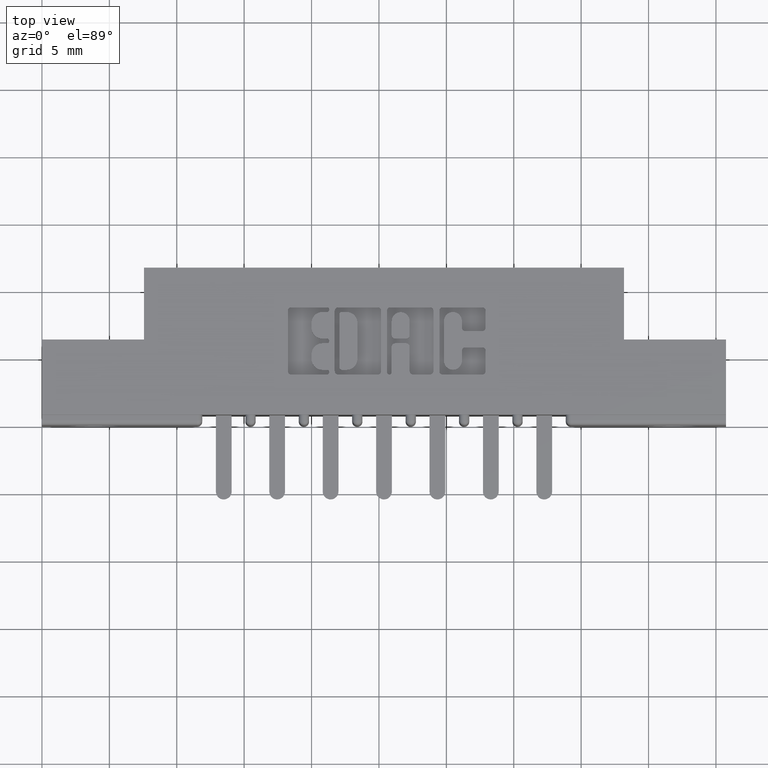
[diagram: clean part render]
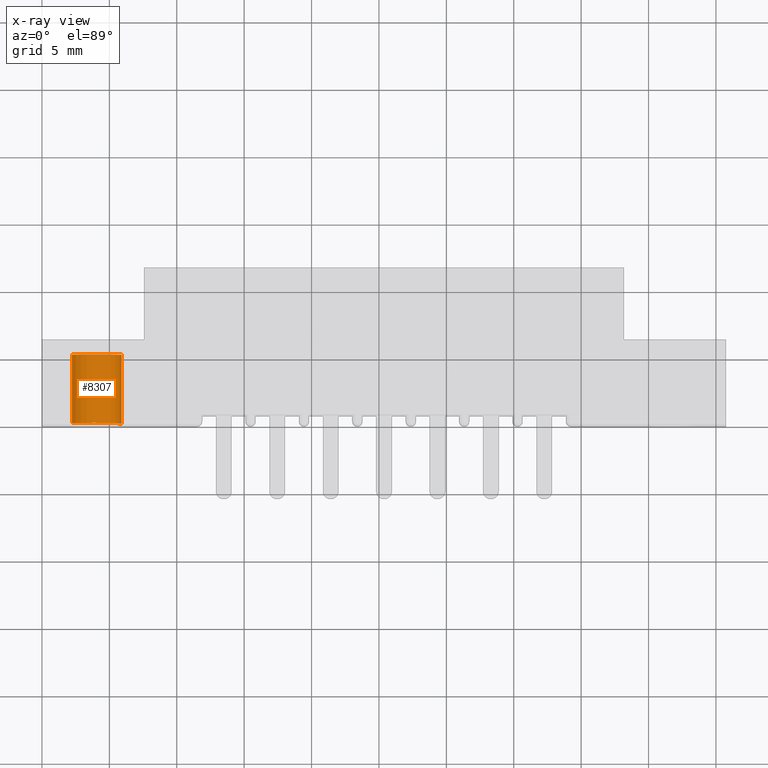
[diagram: x-ray — body ghosted, one internal face saturated and labeled with its STEP entity id]
A machine part, top view, then the same camera in x-ray: the body is ghosted and one INTERNAL B-rep face — a face not visible from any outside direction — is saturated and labeled: STEP entity #8307.
In plain terms, the highlighted cylindrical surface (edge-blend (fillet) strip) has radius 1.9685 mm, axis along (-0, 1, 0).
Its self-contained STEP definition (entity closure, byte-faithful):
#14 = AXIS2_PLACEMENT_3D ( 'NONE', #202, #7370, #9224 ) ;
#202 = CARTESIAN_POINT ( 'NONE',  ( 0.0000000000000000000, 0.2400000000000000500, 0.0000000000000000000 ) ) ;
#393 = EDGE_CURVE ( 'NONE', #563, #5268, #3675, .T. ) ;
#435 = EDGE_CURVE ( 'NONE', #563, #4722, #7837, .T. ) ;
#460 = EDGE_CURVE ( 'NONE', #4722, #11817, #6989, .T. ) ;
#480 = EDGE_CURVE ( 'NONE', #5268, #11817, #11326, .T. ) ;
#563 = VERTEX_POINT ( 'NONE', #11195 ) ;
#1123 = ORIENTED_EDGE ( 'NONE', *, *, #480, .F. ) ;
#2359 = AXIS2_PLACEMENT_3D ( 'NONE', #11627, #11619, #11572 ) ;
#3417 = ORIENTED_EDGE ( 'NONE', *, *, #393, .F. ) ;
#3675 = CIRCLE ( 'NONE', #2359, 0.07749999999999999900 ) ;
#3760 = CARTESIAN_POINT ( 'NONE',  ( 9.491012693391986400E-018, 0.2400000000000000500, 0.07749999999999999900 ) ) ;
#4113 = VECTOR ( 'NONE', #4502, 39.37007874015748100 ) ;
#4502 = DIRECTION ( 'NONE',  ( -0.0000000000000000000, -1.000000000000000000, -0.0000000000000000000 ) ) ;
#4722 = VERTEX_POINT ( 'NONE', #4939 ) ;
#4939 = CARTESIAN_POINT ( 'NONE',  ( 9.491012693391986400E-018, 0.04000000000000000100, 0.07749999999999999900 ) ) ;
#5268 = VERTEX_POINT ( 'NONE', #10906 ) ;
#6871 = ORIENTED_EDGE ( 'NONE', *, *, #435, .T. ) ;
#6897 = ORIENTED_EDGE ( 'NONE', *, *, #460, .T. ) ;
#6989 = CIRCLE ( 'NONE', #7451, 0.07749999999999999900 ) ;
#7370 = DIRECTION ( 'NONE',  ( -0.0000000000000000000, -1.000000000000000000, -0.0000000000000000000 ) ) ;
#7451 = AXIS2_PLACEMENT_3D ( 'NONE', #8937, #9744, #9535 ) ;
#7671 = CARTESIAN_POINT ( 'NONE',  ( 0.0000000000000000000, 0.04000000000000000100, -0.07749999999999999900 ) ) ;
#7724 = CYLINDRICAL_SURFACE ( 'NONE', #14, 0.07749999999999999900 ) ;
#7837 = LINE ( 'NONE', #3760, #9976 ) ;
#8292 = FACE_OUTER_BOUND ( 'NONE', #8723, .T. ) ;
#8307 = ADVANCED_FACE ( 'NONE', ( #8292 ), #7724, .T. ) ;
#8723 = EDGE_LOOP ( 'NONE', ( #3417, #6871, #6897, #1123 ) ) ;
#8937 = CARTESIAN_POINT ( 'NONE',  ( 0.0000000000000000000, 0.04000000000000000100, 0.0000000000000000000 ) ) ;
#9224 = DIRECTION ( 'NONE',  ( 0.0000000000000000000, 0.0000000000000000000, -1.000000000000000000 ) ) ;
#9535 = DIRECTION ( 'NONE',  ( 0.0000000000000000000, 0.0000000000000000000, 1.000000000000000000 ) ) ;
#9543 = CARTESIAN_POINT ( 'NONE',  ( 0.0000000000000000000, 0.2400000000000000500, -0.07749999999999999900 ) ) ;
#9649 = DIRECTION ( 'NONE',  ( -0.0000000000000000000, -1.000000000000000000, -0.0000000000000000000 ) ) ;
#9744 = DIRECTION ( 'NONE',  ( 0.0000000000000000000, 1.000000000000000000, 0.0000000000000000000 ) ) ;
#9976 = VECTOR ( 'NONE', #9649, 39.37007874015748100 ) ;
#10906 = CARTESIAN_POINT ( 'NONE',  ( 0.0000000000000000000, 0.2400000000000000500, -0.07749999999999999900 ) ) ;
#11195 = CARTESIAN_POINT ( 'NONE',  ( 9.491012693391986400E-018, 0.2400000000000000500, 0.07749999999999999900 ) ) ;
#11326 = LINE ( 'NONE', #9543, #4113 ) ;
#11572 = DIRECTION ( 'NONE',  ( 0.0000000000000000000, 0.0000000000000000000, 1.000000000000000000 ) ) ;
#11619 = DIRECTION ( 'NONE',  ( 0.0000000000000000000, 1.000000000000000000, 0.0000000000000000000 ) ) ;
#11627 = CARTESIAN_POINT ( 'NONE',  ( 0.0000000000000000000, 0.2400000000000000500, 0.0000000000000000000 ) ) ;
#11817 = VERTEX_POINT ( 'NONE', #7671 ) ;